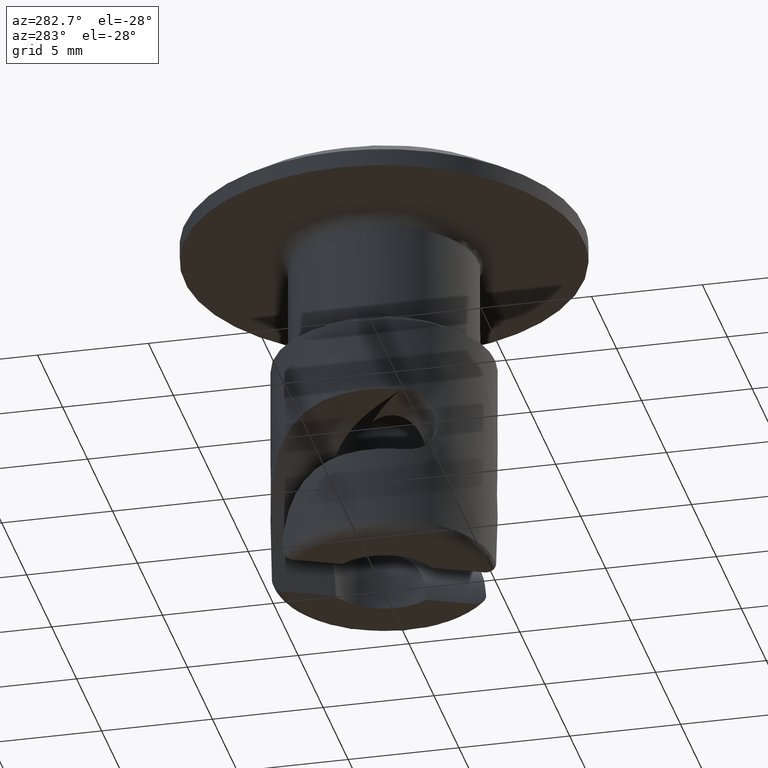
[diagram: clean part render]
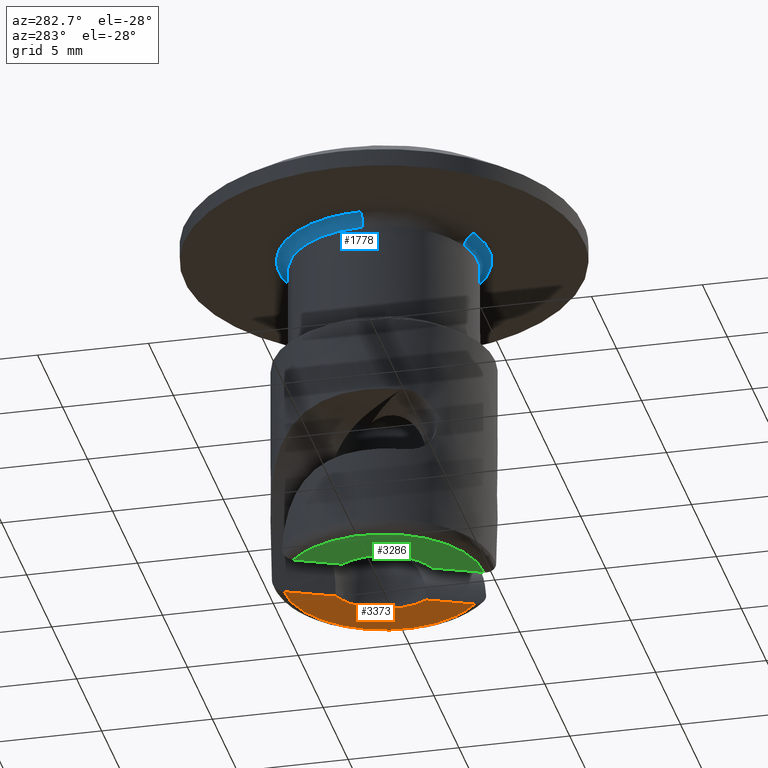
[diagram: same view with three faces highlighted in distinct colors, each labeled with its STEP entity id]
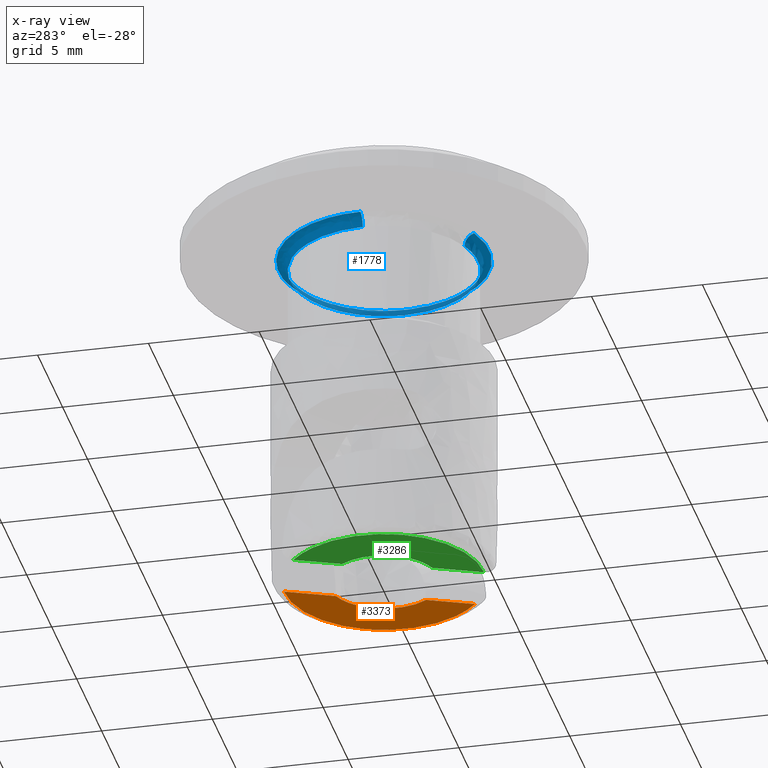
[diagram: x-ray of the same camera — body ghosted, the three highlighted faces saturated]
A machine part, auxiliary view with three faces highlighted in distinct colors.
The next image is the same camera in x-ray (body ghosted, the three faces saturated) — at least one of them is partly hidden behind the body in this view.
Their STEP definitions:

[orange] entity #3373 — the highlighted face is a freeform B-spline surface patch.
#485=CARTESIAN_POINT('',(0.821620629966657,2.361130987559410,-15.999992000000001));
#486=VERTEX_POINT('',#485);
#510=CARTESIAN_POINT('',(2.045401307447845,-1.437474692469576,-15.999992000000001));
#511=VERTEX_POINT('',#510);
#512=CARTESIAN_POINT('',(2.045401307447869,-1.437474692469592,-15.999992000000001));
#513=CARTESIAN_POINT('',(2.761412079696033,-0.418653716089771,-15.999991999999995));
#514=CARTESIAN_POINT('',(2.379559828096606,0.766612695243727,-15.999992000000001));
#515=CARTESIAN_POINT('',(1.997707576497179,1.951879106577226,-15.999991999999995));
#516=CARTESIAN_POINT('',(0.821620629966651,2.361130987559395,-15.999992000000001));
#524=(BOUNDED_CURVE()B_SPLINE_CURVE(2,(#512,#513,#514,#515,#516),.UNSPECIFIED.,.F.,.U.)B_SPLINE_CURVE_WITH_KNOTS((3,2,3),(0.0,0.500000000000000,1.0),.UNSPECIFIED.)CURVE()GEOMETRIC_REPRESENTATION_ITEM()RATIONAL_B_SPLINE_CURVE((1.0,0.895105287000383,1.0,0.895105287000383,1.0))REPRESENTATION_ITEM(''));
#525=EDGE_CURVE('',#511,#486,#524,.T.);
#2380=CARTESIAN_POINT('',(-0.085926736938831,4.499179546970655,-15.999992000000001));
#2381=VERTEX_POINT('',#2380);
#2405=CARTESIAN_POINT('',(-0.085926736938831,4.499179546970655,-15.999992000000001));
#2406=CARTESIAN_POINT('',(0.821620629966657,2.361130987559410,-15.999992000000001));
#2407=QUASI_UNIFORM_CURVE('',1,(#2405,#2406),.UNSPECIFIED.,.F.,.U.);
#2408=EDGE_CURVE('',#2381,#486,#2407,.T.);
#2976=CARTESIAN_POINT('',(2.896918640165445,-3.443524704755395,-15.999992000000001));
#2977=VERTEX_POINT('',#2976);
#2978=CARTESIAN_POINT('',(2.896918640165445,-3.443524704755395,-15.999992000000001));
#2979=CARTESIAN_POINT('',(2.045401307447845,-1.437474692469576,-15.999992000000001));
#2980=QUASI_UNIFORM_CURVE('',1,(#2978,#2979),.UNSPECIFIED.,.F.,.U.);
#2981=EDGE_CURVE('',#2977,#511,#2980,.T.);
#3339=CARTESIAN_POINT('',(-0.085926736938832,4.499179546970653,-15.999992000000001));
#3340=CARTESIAN_POINT('',(3.094408222547057,4.559918577851320,-15.999991999999999));
#3341=CARTESIAN_POINT('',(4.212725552133523,1.582069348164392,-15.999992000000001));
#3342=CARTESIAN_POINT('',(5.331042881719990,-1.395779881522537,-15.999991999999999));
#3343=CARTESIAN_POINT('',(2.896918640165445,-3.443524704755395,-15.999992000000001));
#3351=(BOUNDED_CURVE()B_SPLINE_CURVE(2,(#3339,#3340,#3341,#3342,#3343),.UNSPECIFIED.,.F.,.U.)B_SPLINE_CURVE_WITH_KNOTS((3,2,3),(0.0,0.500000000000000,1.0),.UNSPECIFIED.)CURVE()GEOMETRIC_REPRESENTATION_ITEM()RATIONAL_B_SPLINE_CURVE((1.0,0.816587725479251,1.0,0.816587725479251,1.0))REPRESENTATION_ITEM(''));
#3352=EDGE_CURVE('',#2381,#2977,#3351,.T.);
#3362=CARTESIAN_POINT('',(-0.314885224028895,-3.840262663797265,-15.999992000000001));
#3363=CARTESIAN_POINT('',(4.726785546383615,-3.840262663797265,-15.999992000000001));
#3364=CARTESIAN_POINT('',(-0.314885224028895,4.895917221959286,-15.999992000000001));
#3365=CARTESIAN_POINT('',(4.726785546383615,4.895917221959286,-15.999992000000001));
#3366=B_SPLINE_SURFACE_WITH_KNOTS('',1,1,((#3362,#3364),(#3363,#3365)),.UNSPECIFIED.,.F.,.F.,.U.,(2,2),(2,2),(0.0,5.041670770412511),(0.0,8.736179885756551),.UNSPECIFIED.);
#3367=ORIENTED_EDGE('',*,*,#2408,.F.);
#3368=ORIENTED_EDGE('',*,*,#3352,.T.);
#3369=ORIENTED_EDGE('',*,*,#2981,.T.);
#3370=ORIENTED_EDGE('',*,*,#525,.T.);
#3371=EDGE_LOOP('',(#3367,#3368,#3369,#3370));
#3372=FACE_OUTER_BOUND('',#3371,.T.);
#3373=ADVANCED_FACE('',(#3372),#3366,.F.);

[blue] entity #1778 — the highlighted face is a freeform B-spline surface patch.
#100=CARTESIAN_POINT('',(2.345730252827963,-3.544016024365900,-0.499999999999945));
#101=VERTEX_POINT('',#100);
#107=CARTESIAN_POINT('',(-1.501533358308680,-3.975914683929504,-0.499999999958282));
#108=VERTEX_POINT('',#107);
#109=CARTESIAN_POINT('',(2.345730252827962,-3.544016024365900,-0.499999999999945));
#110=CARTESIAN_POINT('',(1.279103551154263,-4.250000000000000,-0.499999999999945));
#111=CARTESIAN_POINT('',(0.0,-4.250000000000000,-0.499999999999945));
#112=CARTESIAN_POINT('',(-0.775782027656313,-4.250000000000000,-0.499999999999945));
#113=CARTESIAN_POINT('',(-1.501533358308679,-3.975914683929504,-0.499999999958283));
#121=(BOUNDED_CURVE()B_SPLINE_CURVE(2,(#109,#110,#111,#112,#113),.UNSPECIFIED.,.F.,.U.)B_SPLINE_CURVE_WITH_KNOTS((3,2,3),(0.155387398572269,0.250000000000000,0.310000000000259),.UNSPECIFIED.)CURVE()GEOMETRIC_REPRESENTATION_ITEM()RATIONAL_B_SPLINE_CURVE((0.862207977426776,0.889154442510071,1.0,0.929705627484469,0.893152553776538))REPRESENTATION_ITEM(''));
#122=EDGE_CURVE('',#101,#108,#121,.T.);
#124=CARTESIAN_POINT('',(-4.249999999999999,2.218537E-016,-0.499999999961610));
#125=VERTEX_POINT('',#124);
#139=CARTESIAN_POINT('',(-2.139200092555012,3.672372933677357,-0.499999999994735));
#140=VERTEX_POINT('',#139);
#141=CARTESIAN_POINT('',(-4.249999999999999,2.218537E-016,-0.499999999961610));
#142=CARTESIAN_POINT('',(-4.249999999999998,2.442807353351999,-0.499999999983644));
#143=CARTESIAN_POINT('',(-2.139200092555013,3.672372933677357,-0.499999999994735));
#151=(BOUNDED_CURVE()B_SPLINE_CURVE(2,(#141,#142,#143),.UNSPECIFIED.,.F.,.U.)B_SPLINE_CURVE_WITH_KNOTS((3,3),(0.500000000000000,0.664136913379558),.UNSPECIFIED.)CURVE()GEOMETRIC_REPRESENTATION_ITEM()RATIONAL_B_SPLINE_CURVE((1.0,0.807701644456626,0.867909357128086))REPRESENTATION_ITEM(''));
#152=EDGE_CURVE('',#125,#140,#151,.T.);
#198=CARTESIAN_POINT('',(4.250000000000000,0.0,-0.499999999999945));
#199=VERTEX_POINT('',#198);
#200=CARTESIAN_POINT('',(-2.139200092555013,3.672372933677357,-0.499999999994735));
#201=CARTESIAN_POINT('',(-1.147585511243992,4.250000000000000,-0.499999999999945));
#202=CARTESIAN_POINT('',(0.0,4.250000000000000,-0.499999999999945));
#203=CARTESIAN_POINT('',(4.249999999999999,4.249999999999999,-0.499999999999945));
#204=CARTESIAN_POINT('',(4.250000000000000,0.0,-0.499999999999945));
#212=(BOUNDED_CURVE()B_SPLINE_CURVE(2,(#200,#201,#202,#203,#204),.UNSPECIFIED.,.F.,.U.)B_SPLINE_CURVE_WITH_KNOTS((3,2,3),(0.664136913379558,0.750000000000000,1.0),.UNSPECIFIED.)CURVE()GEOMETRIC_REPRESENTATION_ITEM()RATIONAL_B_SPLINE_CURVE((0.867909357128086,0.899405136729922,1.0,0.707106781186548,1.0))REPRESENTATION_ITEM(''));
#213=EDGE_CURVE('',#140,#199,#212,.T.);
#215=CARTESIAN_POINT('',(4.250000000000000,0.0,-0.499999999999945));
#216=CARTESIAN_POINT('',(4.250000000000000,-2.283608869101122,-0.499999999999945));
#217=CARTESIAN_POINT('',(2.345730252827962,-3.544016024365900,-0.499999999999945));
#225=(BOUNDED_CURVE()B_SPLINE_CURVE(2,(#215,#216,#217),.UNSPECIFIED.,.F.,.U.)B_SPLINE_CURVE_WITH_KNOTS((3,3),(0.0,0.155387398572269),.UNSPECIFIED.)CURVE()GEOMETRIC_REPRESENTATION_ITEM()RATIONAL_B_SPLINE_CURVE((1.0,0.817952338676476,0.862207977426776))REPRESENTATION_ITEM(''));
#226=EDGE_CURVE('',#199,#101,#225,.T.);
#1675=CARTESIAN_POINT('',(-1.690435198935368,-4.476108434424392,-0.001203826731089));
#1676=CARTESIAN_POINT('',(-0.873380027817440,-4.784675315893946,-0.001203826731089));
#1677=CARTESIAN_POINT('',(-5.859344E-016,-4.784675315893946,-0.001203826731089));
#1678=CARTESIAN_POINT('',(4.784675315893944,-4.784675315893945,-0.001203826731089));
#1679=CARTESIAN_POINT('',(4.784675315893946,-8.789016E-016,-0.001203826731089));
#1680=CARTESIAN_POINT('',(4.784675315893945,4.784675315893944,-0.001203826731089));
#1681=CARTESIAN_POINT('',(1.171869E-015,4.784675315893946,-0.001203826731089));
#1682=CARTESIAN_POINT('',(-4.784675315893944,4.784675315893945,-0.001203826731089));
#1683=CARTESIAN_POINT('',(-4.784675315893946,1.464836E-015,-0.001203826731089));
#1684=CARTESIAN_POINT('',(-1.487800636366968,-3.939551768312883,0.038667875892163));
#1685=CARTESIAN_POINT('',(-0.768686881339999,-4.211130355236122,0.038667875892163));
#1686=CARTESIAN_POINT('',(-5.156977E-016,-4.211130355236123,0.038667875892163));
#1687=CARTESIAN_POINT('',(4.211130355236122,-4.211130355236122,0.038667875892163));
#1688=CARTESIAN_POINT('',(4.211130355236123,-7.735465E-016,0.038667875892163));
#1689=CARTESIAN_POINT('',(4.211130355236122,4.211130355236122,0.038667875892163));
#1690=CARTESIAN_POINT('',(1.031395E-015,4.211130355236123,0.038667875892163));
#1691=CARTESIAN_POINT('',(-4.211130355236122,4.211130355236122,0.038667875892163));
#1692=CARTESIAN_POINT('',(-4.211130355236123,1.289244E-015,0.038667875892163));
#1693=CARTESIAN_POINT('',(-1.501963272960139,-3.977053056234654,-0.534862112595797));
#1694=CARTESIAN_POINT('',(-0.776004147301747,-4.251216847612755,-0.534862112595797));
#1695=CARTESIAN_POINT('',(-5.206067E-016,-4.251216847612756,-0.534862112595797));
#1696=CARTESIAN_POINT('',(4.251216847612755,-4.251216847612756,-0.534862112595797));
#1697=CARTESIAN_POINT('',(4.251216847612756,-7.809101E-016,-0.534862112595797));
#1698=CARTESIAN_POINT('',(4.251216847612756,4.251216847612755,-0.534862112595797));
#1699=CARTESIAN_POINT('',(1.041213E-015,4.251216847612756,-0.534862112595797));
#1700=CARTESIAN_POINT('',(-4.251216847612755,4.251216847612756,-0.534862112595797));
#1701=CARTESIAN_POINT('',(-4.251216847612756,1.301517E-015,-0.534862112595797));
#1709=(BOUNDED_SURFACE()B_SPLINE_SURFACE(2,2,((#1675,#1684,#1693),(#1676,#1685,#1694),(#1677,#1686,#1695),(#1678,#1687,#1696),(#1679,#1688,#1697),(#1680,#1689,#1698),(#1681,#1690,#1699),(#1682,#1691,#1700),(#1683,#1692,#1701)),.UNSPECIFIED.,.F.,.F.,.U.)B_SPLINE_SURFACE_WITH_KNOTS((3,2,2,2,3),(3,3),(0.0,1.902602311099245,9.830111940679423,17.757621570259602,25.685131199839780),(0.0,0.911185222123489),.UNSPECIFIED.)GEOMETRIC_REPRESENTATION_ITEM()RATIONAL_B_SPLINE_SURFACE(((0.812829742495508,0.531919635418494,0.808327346992212),(0.846095532716660,0.553688926182902,0.841408872617134),(0.910068206218876,0.595552946883686,0.905027191126598),(0.643515399959645,0.421119527297086,0.639950864003831),(0.910068206218876,0.595552946883686,0.905027191126598),(0.643515399959645,0.421119527297086,0.639950864003831),(0.910068206218876,0.595552946883686,0.905027191126598),(0.643515399959645,0.421119527297086,0.639950864003831),(0.910068206218876,0.595552946883686,0.905027191126598)))REPRESENTATION_ITEM('')SURFACE());
#1710=ORIENTED_EDGE('',*,*,#226,.F.);
#1711=ORIENTED_EDGE('',*,*,#213,.F.);
#1712=ORIENTED_EDGE('',*,*,#152,.F.);
#1713=CARTESIAN_POINT('',(-4.749999999936014,1.109309E-016,1.369246E-014));
#1714=VERTEX_POINT('',#1713);
#1715=CARTESIAN_POINT('',(-4.749999999936015,1.109309E-016,1.369246E-014));
#1716=CARTESIAN_POINT('',(-4.250000000076668,4.424206E-016,-2.558872E-010));
#1717=CARTESIAN_POINT('',(-4.249999999999999,2.218537E-016,-0.499999999961610));
#1725=(BOUNDED_CURVE()B_SPLINE_CURVE(2,(#1715,#1716,#1717),.UNSPECIFIED.,.F.,.U.)B_SPLINE_CURVE_WITH_KNOTS((3,3),(-1.726807298990721,-0.285995334200836),.UNSPECIFIED.)CURVE()GEOMETRIC_REPRESENTATION_ITEM()RATIONAL_B_SPLINE_CURVE((0.882788776030192,0.622603437860180,0.878205638999183))REPRESENTATION_ITEM(''));
#1726=EDGE_CURVE('',#1714,#125,#1725,.T.);
#1727=ORIENTED_EDGE('',*,*,#1726,.F.);
#1728=CARTESIAN_POINT('',(4.750000000000000,0.0,0.0));
#1729=VERTEX_POINT('',#1728);
#1730=CARTESIAN_POINT('',(4.750000000000000,0.0,0.0));
#1731=CARTESIAN_POINT('',(4.750000000000000,4.750000000000000,0.0));
#1732=CARTESIAN_POINT('',(0.0,4.750000000000000,0.0));
#1733=CARTESIAN_POINT('',(-4.750000000000000,4.750000000000000,0.0));
#1734=CARTESIAN_POINT('',(-4.749999999936014,1.109309E-016,1.369246E-014));
#1742=(BOUNDED_CURVE()B_SPLINE_CURVE(2,(#1730,#1731,#1732,#1733,#1734),.UNSPECIFIED.,.F.,.U.)B_SPLINE_CURVE_WITH_KNOTS((3,2,3),(0.0,0.250000000000000,0.500000000000000),.UNSPECIFIED.)CURVE()GEOMETRIC_REPRESENTATION_ITEM()RATIONAL_B_SPLINE_CURVE((1.0,0.707106781186548,1.0,0.707106781186548,1.0))REPRESENTATION_ITEM(''));
#1743=EDGE_CURVE('',#1729,#1714,#1742,.T.);
#1744=ORIENTED_EDGE('',*,*,#1743,.F.);
#1745=CARTESIAN_POINT('',(-1.678182915274270,-4.443669956313121,1.999475E-014));
#1746=VERTEX_POINT('',#1745);
#1747=CARTESIAN_POINT('',(-1.678182915274271,-4.443669956313121,1.999475E-014));
#1748=CARTESIAN_POINT('',(-0.867049701881882,-4.750000000000001,0.0));
#1749=CARTESIAN_POINT('',(0.0,-4.750000000000000,0.0));
#1750=CARTESIAN_POINT('',(4.750000000000000,-4.750000000000000,0.0));
#1751=CARTESIAN_POINT('',(4.750000000000000,0.0,0.0));
#1759=(BOUNDED_CURVE()B_SPLINE_CURVE(2,(#1747,#1748,#1749,#1750,#1751),.UNSPECIFIED.,.F.,.U.)B_SPLINE_CURVE_WITH_KNOTS((3,2,3),(0.690000051443656,0.750000000000000,1.0),.UNSPECIFIED.)CURVE()GEOMETRIC_REPRESENTATION_ITEM()RATIONAL_B_SPLINE_CURVE((0.893152616457669,0.929705687754764,1.0,0.707106781186548,1.0))REPRESENTATION_ITEM(''));
#1760=EDGE_CURVE('',#1746,#1729,#1759,.T.);
#1761=ORIENTED_EDGE('',*,*,#1760,.F.);
#1762=CARTESIAN_POINT('',(-1.678182915274270,-4.443669956313121,1.999475E-014));
#1763=CARTESIAN_POINT('',(-1.501532634412610,-3.975914957403239,0.000000060795624));
#1764=CARTESIAN_POINT('',(-1.501533358308680,-3.975914683929505,-0.499999999958282));
#1772=(BOUNDED_CURVE()B_SPLINE_CURVE(2,(#1762,#1763,#1764),.UNSPECIFIED.,.F.,.U.)B_SPLINE_CURVE_WITH_KNOTS((3,3),(-1.726807423757014,-0.285995334214362),.UNSPECIFIED.)CURVE()GEOMETRIC_REPRESENTATION_ITEM()RATIONAL_B_SPLINE_CURVE((0.788465090003439,0.556079830748454,0.784371609209067))REPRESENTATION_ITEM(''));
#1773=EDGE_CURVE('',#1746,#108,#1772,.T.);
#1774=ORIENTED_EDGE('',*,*,#1773,.T.);
#1775=ORIENTED_EDGE('',*,*,#122,.F.);
#1776=EDGE_LOOP('',(#1710,#1711,#1712,#1727,#1744,#1761,#1774,#1775));
#1777=FACE_OUTER_BOUND('',#1776,.T.);
#1778=ADVANCED_FACE('',(#1777),#1709,.F.);

[green] entity #3286 — the highlighted face is a freeform B-spline surface patch.
#788=CARTESIAN_POINT('',(-0.821620629966657,-2.361130987559410,-15.999992000000001));
#789=VERTEX_POINT('',#788);
#809=CARTESIAN_POINT('',(-2.045401307447845,1.437474692469576,-15.999992000000001));
#810=VERTEX_POINT('',#809);
#811=CARTESIAN_POINT('',(-2.045401307447869,1.437474692469593,-15.999992000000001));
#812=CARTESIAN_POINT('',(-2.761412079696033,0.418653716089771,-15.999992000000001));
#813=CARTESIAN_POINT('',(-2.379559828096606,-0.766612695243728,-15.999992000000001));
#814=CARTESIAN_POINT('',(-1.997707576497178,-1.951879106577227,-15.999992000000001));
#815=CARTESIAN_POINT('',(-0.821620629966651,-2.361130987559395,-15.999992000000001));
#823=(BOUNDED_CURVE()B_SPLINE_CURVE(2,(#811,#812,#813,#814,#815),.UNSPECIFIED.,.F.,.U.)B_SPLINE_CURVE_WITH_KNOTS((3,2,3),(0.0,0.500000000000000,1.0),.UNSPECIFIED.)CURVE()GEOMETRIC_REPRESENTATION_ITEM()RATIONAL_B_SPLINE_CURVE((1.0,0.895105287000382,1.0,0.895105287000382,1.0))REPRESENTATION_ITEM(''));
#824=EDGE_CURVE('',#810,#789,#823,.T.);
#2430=CARTESIAN_POINT('',(-2.896918640165445,3.443524704755395,-15.999992000000001));
#2431=VERTEX_POINT('',#2430);
#2432=CARTESIAN_POINT('',(-2.896918640165445,3.443524704755395,-15.999992000000001));
#2433=CARTESIAN_POINT('',(-2.045401307447845,1.437474692469576,-15.999992000000001));
#2434=QUASI_UNIFORM_CURVE('',1,(#2432,#2433),.UNSPECIFIED.,.F.,.U.);
#2435=EDGE_CURVE('',#2431,#810,#2434,.T.);
#2925=CARTESIAN_POINT('',(0.085926736938831,-4.499179546970655,-15.999992000000001));
#2926=VERTEX_POINT('',#2925);
#2950=CARTESIAN_POINT('',(0.085926736938831,-4.499179546970655,-15.999992000000001));
#2951=CARTESIAN_POINT('',(-0.821620629966657,-2.361130987559410,-15.999992000000001));
#2952=QUASI_UNIFORM_CURVE('',1,(#2950,#2951),.UNSPECIFIED.,.F.,.U.);
#2953=EDGE_CURVE('',#2926,#789,#2952,.T.);
#3255=CARTESIAN_POINT('',(0.085926736938831,-4.499179546970653,-15.999992000000001));
#3256=CARTESIAN_POINT('',(-3.094408222547058,-4.559918577851319,-15.999991999999999));
#3257=CARTESIAN_POINT('',(-4.212725552133524,-1.582069348164390,-15.999992000000001));
#3258=CARTESIAN_POINT('',(-5.331042881719990,1.395779881522539,-15.999991999999999));
#3259=CARTESIAN_POINT('',(-2.896918640165445,3.443524704755395,-15.999992000000001));
#3267=(BOUNDED_CURVE()B_SPLINE_CURVE(2,(#3255,#3256,#3257,#3258,#3259),.UNSPECIFIED.,.F.,.U.)B_SPLINE_CURVE_WITH_KNOTS((3,2,3),(0.0,0.500000000000000,1.0),.UNSPECIFIED.)CURVE()GEOMETRIC_REPRESENTATION_ITEM()RATIONAL_B_SPLINE_CURVE((1.0,0.816587725479251,1.0,0.816587725479251,1.0))REPRESENTATION_ITEM(''));
#3268=EDGE_CURVE('',#2926,#2431,#3267,.T.);
#3275=CARTESIAN_POINT('',(-4.726785552527375,-4.895917431452102,-15.999992000000001));
#3276=CARTESIAN_POINT('',(0.314885353170827,-4.895917431452102,-15.999992000000001));
#3277=CARTESIAN_POINT('',(-4.726785552527375,3.840262376196913,-15.999992000000001));
#3278=CARTESIAN_POINT('',(0.314885353170827,3.840262376196913,-15.999992000000001));
#3279=B_SPLINE_SURFACE_WITH_KNOTS('',1,1,((#3275,#3277),(#3276,#3278)),.UNSPECIFIED.,.F.,.F.,.U.,(2,2),(2,2),(0.0,5.041670905698202),(0.0,8.736179807649014),.UNSPECIFIED.);
#3280=ORIENTED_EDGE('',*,*,#3268,.T.);
#3281=ORIENTED_EDGE('',*,*,#2435,.T.);
#3282=ORIENTED_EDGE('',*,*,#824,.T.);
#3283=ORIENTED_EDGE('',*,*,#2953,.F.);
#3284=EDGE_LOOP('',(#3280,#3281,#3282,#3283));
#3285=FACE_OUTER_BOUND('',#3284,.T.);
#3286=ADVANCED_FACE('',(#3285),#3279,.F.);